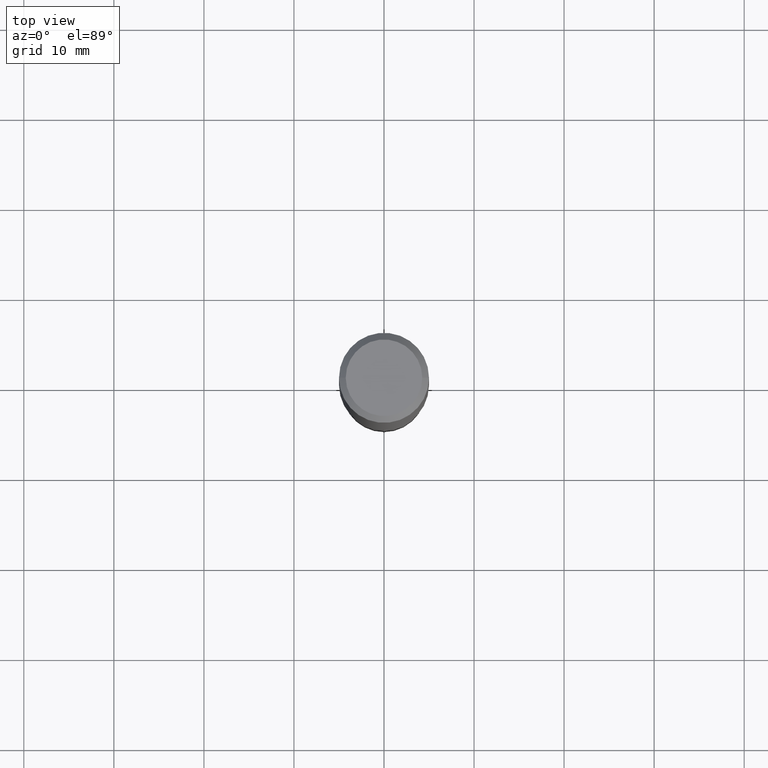
[diagram: clean part render]
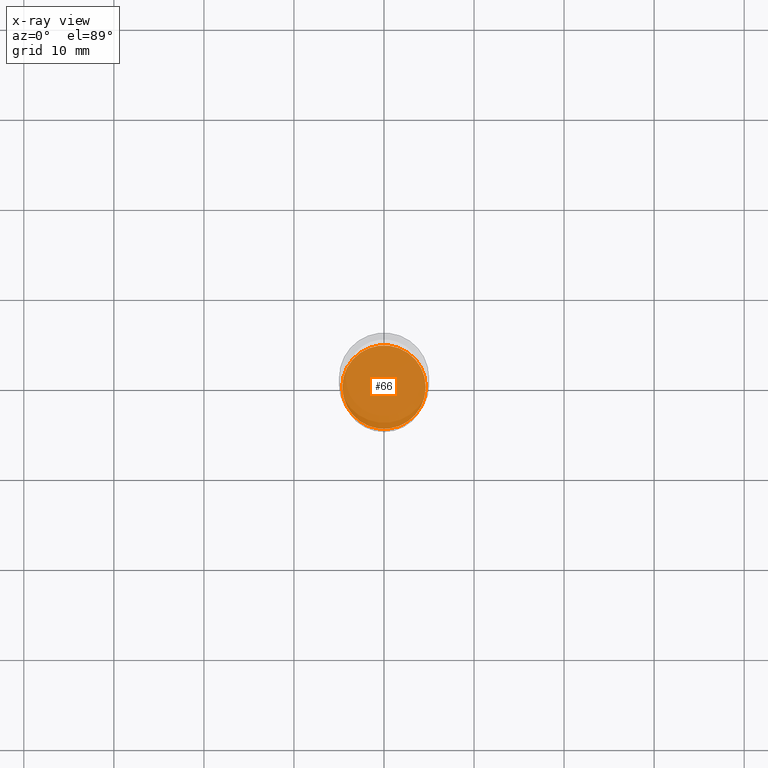
[diagram: x-ray — body ghosted, one internal face saturated and labeled with its STEP entity id]
A machine part, top view, then the same camera in x-ray: the body is ghosted and one INTERNAL B-rep face — a face not visible from any outside direction — is saturated and labeled: STEP entity #66.
In plain terms, the highlighted planar face has unit normal (-0, 0, 1).
Its self-contained STEP definition (entity closure, byte-faithful):
#2 = DIRECTION ( 'NONE',  ( 1.000000000000000000, -6.982962677686265922E-15, 4.876176775795935793E-29 ) ) ;
#28 = ORIENTED_EDGE ( 'NONE', *, *, #87, .F. ) ;
#31 = DIRECTION ( 'NONE',  ( 1.000000000000000000, -6.982962677686269866E-15, 0.000000000000000000 ) ) ;
#41 = CARTESIAN_POINT ( 'NONE',  ( 5.848583196872372803E-29, -8.350226769977267192E-15, -2.391600000000000392 ) ) ;
#54 = AXIS2_PLACEMENT_3D ( 'NONE', #69, #433, #2 ) ;
#66 = ADVANCED_FACE ( 'NONE', ( #455 ), #415, .F. ) ;
#69 = CARTESIAN_POINT ( 'NONE',  ( 5.848583196872372803E-29, -8.350226769977267192E-15, -2.391600000000000392 ) ) ;
#73 = CARTESIAN_POINT ( 'NONE',  ( -0.1825499999999999623, -7.050481778673093961E-15, -2.391600000000000392 ) ) ;
#84 = CARTESIAN_POINT ( 'NONE',  ( 0.1825499999999999623, -9.624966606788895640E-15, -2.391600000000000392 ) ) ;
#87 = EDGE_CURVE ( 'NONE', #166, #260, #172, .T. ) ;
#118 = EDGE_CURVE ( 'NONE', #260, #166, #340, .T. ) ;
#166 = VERTEX_POINT ( 'NONE', #73 ) ;
#172 = CIRCLE ( 'NONE', #452, 0.1825499999999999623 ) ;
#207 = CARTESIAN_POINT ( 'NONE',  ( 5.848583196872372803E-29, -8.350226769977267192E-15, -2.391600000000000392 ) ) ;
#210 = DIRECTION ( 'NONE',  ( -2.445468806185136597E-29, 3.491481338843145583E-15, 1.000000000000000000 ) ) ;
#231 = AXIS2_PLACEMENT_3D ( 'NONE', #207, #390, #31 ) ;
#260 = VERTEX_POINT ( 'NONE', #84 ) ;
#317 = DIRECTION ( 'NONE',  ( 1.000000000000000000, -6.982962677686269866E-15, 0.000000000000000000 ) ) ;
#333 = EDGE_LOOP ( 'NONE', ( #362, #28 ) ) ;
#340 = CIRCLE ( 'NONE', #231, 0.1825499999999999623 ) ;
#362 = ORIENTED_EDGE ( 'NONE', *, *, #118, .F. ) ;
#390 = DIRECTION ( 'NONE',  ( -2.445468806185136597E-29, 3.491481338843145583E-15, 1.000000000000000000 ) ) ;
#415 = PLANE ( 'NONE',  #54 ) ;
#433 = DIRECTION ( 'NONE',  ( -2.438088387897960049E-29, 3.491481338843145188E-15, 1.000000000000000000 ) ) ;
#452 = AXIS2_PLACEMENT_3D ( 'NONE', #41, #210, #317 ) ;
#455 = FACE_OUTER_BOUND ( 'NONE', #333, .T. ) ;